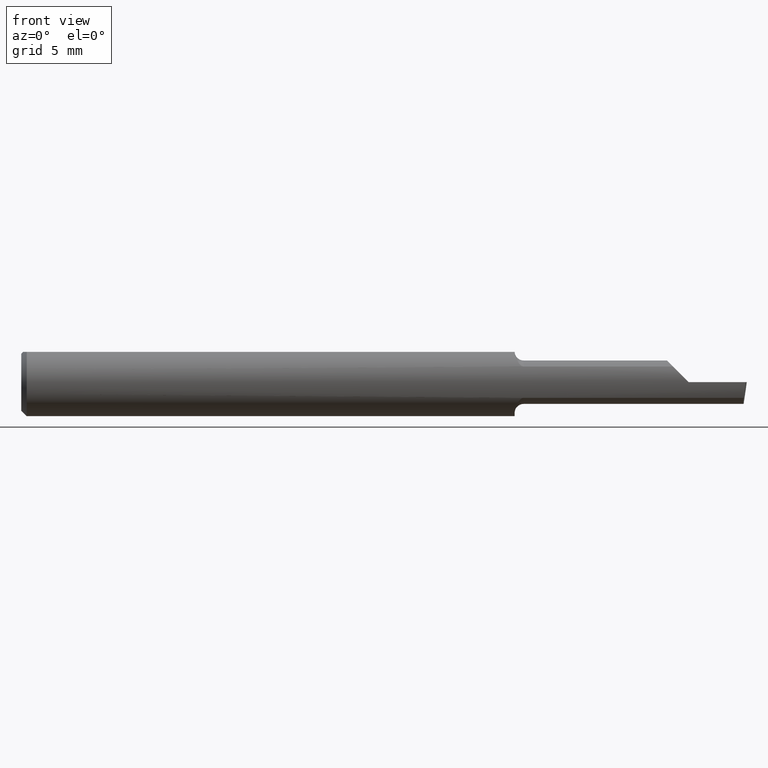
[diagram: clean part render]
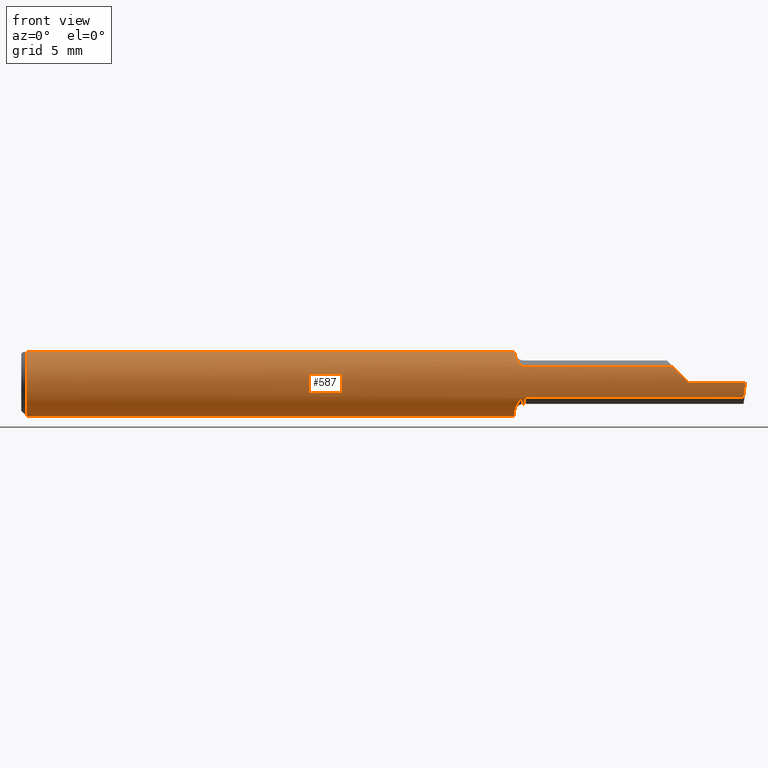
[diagram: same view with one face highlighted and labeled with its STEP entity id]
A machine part, front view. The second image highlights one B-rep face of the part: STEP entity #587.
In plain terms, the highlighted cylindrical surface (edge-blend (fillet) strip) has radius 2.3774 mm, axis along (-1, -0, -0).
Its self-contained STEP definition (entity closure, byte-faithful):
#4 = ORIENTED_EDGE ( 'NONE', *, *, #201, .T. ) ;
#20 = ORIENTED_EDGE ( 'NONE', *, *, #623, .F. ) ;
#26 = CARTESIAN_POINT ( 'NONE',  ( 1.369237437666585455, -0.07513599091569019006, -0.05602756047418826907 ) ) ;
#30 = CARTESIAN_POINT ( 'NONE',  ( 1.360020127471513129, -0.04150000000000002298, -0.08389702020930182857 ) ) ;
#34 = CARTESIAN_POINT ( 'NONE',  ( 1.384999999999999787, -0.08307469879518060429, 0.04312255117789303566 ) ) ;
#40 = EDGE_CURVE ( 'NONE', #176, #450, #514, .T. ) ;
#44 = CARTESIAN_POINT ( 'NONE',  ( 1.996386342823452065, -0.09360000000000009979, -6.634435288474567089E-17 ) ) ;
#47 = CARTESIAN_POINT ( 'NONE',  ( 0.01499999999999999598, 0.0000000000000000000, -0.09360000000000001652 ) ) ;
#53 = DIRECTION ( 'NONE',  ( -1.000000000000000000, -0.0000000000000000000, -0.0000000000000000000 ) ) ;
#57 = CARTESIAN_POINT ( 'NONE',  ( 1.840000000000000080, -0.09360000000000005815, 1.959434878635762025E-17 ) ) ;
#59 = CARTESIAN_POINT ( 'NONE',  ( 1.810264301876177928, -0.09002356847881788637, 0.02973569812382168345 ) ) ;
#62 = CARTESIAN_POINT ( 'NONE',  ( 1.360020127471513129, -0.04150000000000002298, -0.08389702020930182857 ) ) ;
#63 = CARTESIAN_POINT ( 'NONE',  ( 0.01499999999999999944, -0.04209513035969835587, 0.08360000000000000764 ) ) ;
#65 = CARTESIAN_POINT ( 'NONE',  ( 1.996386342823452065, -0.09360000000000009979, -6.634435288474567089E-17 ) ) ;
#71 = CARTESIAN_POINT ( 'NONE',  ( 1.619999999999999885, -0.08307469879518077083, 0.04312255117789289688 ) ) ;
#74 = CARTESIAN_POINT ( 'NONE',  ( 1.373672693420809443, -0.07917899622880057720, -0.04997532113045943802 ) ) ;
#77 = CARTESIAN_POINT ( 'NONE',  ( 1.369277238843510602, -0.07518688180261752507, 0.05595855205958088358 ) ) ;
#81 = CARTESIAN_POINT ( 'NONE',  ( 1.360033712670299932, -0.04209513035969834893, 0.08360000000000000764 ) ) ;
#82 = ORIENTED_EDGE ( 'NONE', *, *, #573, .F. ) ;
#85 = B_SPLINE_CURVE_WITH_KNOTS ( 'NONE', 3,
 ( #81, #631, #182, #432, #123, #328, #77, #484, #384, #430, #283, #237 ),
 .UNSPECIFIED., .F., .F.,
 ( 4, 2, 2, 2, 2, 4 ),
 ( 4.385794166506856804E-07, 0.0004249653867803443734, 0.0008494921941440383879, 0.001274019001507732457, 0.001486282405189579166, 0.001698545808871426092 ),
 .UNSPECIFIED. ) ;
#87 = DIRECTION ( 'NONE',  ( 0.0000000000000000000, 0.0000000000000000000, 1.000000000000000000 ) ) ;
#89 = CARTESIAN_POINT ( 'NONE',  ( 1.992827658777091893, -0.09002356847881787250, -0.02973569812382169039 ) ) ;
#91 = CARTESIAN_POINT ( 'NONE',  ( 1.796877448822106649, -0.08307469879518074307, 0.04312255117789294545 ) ) ;
#93 = DIRECTION ( 'NONE',  ( 1.000000000000000000, 0.0000000000000000000, 0.0000000000000000000 ) ) ;
#100 = ORIENTED_EDGE ( 'NONE', *, *, #503, .F. ) ;
#113 = AXIS2_PLACEMENT_3D ( 'NONE', #200, #444, #650 ) ;
#117 = LINE ( 'NONE', #649, #647 ) ;
#121 = AXIS2_PLACEMENT_3D ( 'NONE', #381, #181, #376 ) ;
#123 = CARTESIAN_POINT ( 'NONE',  ( 1.363721006865827645, -0.06478644025684784924, 0.06776242552123268315 ) ) ;
#124 = VERTEX_POINT ( 'NONE', #62 ) ;
#126 = CARTESIAN_POINT ( 'NONE',  ( 1.367076397983110869, -0.07187891021191493424, -0.06019546731975673054 ) ) ;
#129 = CARTESIAN_POINT ( 'NONE',  ( 1.619999999999999885, -0.08307469879518077083, -0.04312255117789289688 ) ) ;
#131 = B_SPLINE_CURVE_WITH_KNOTS ( 'NONE', 3,
 ( #527, #227, #578, #582 ),
 .UNSPECIFIED., .F., .F.,
 ( 4, 4 ),
 ( 0.001735506710063797848, 0.001793010945052102593 ),
 .UNSPECIFIED. ) ;
#132 = CARTESIAN_POINT ( 'NONE',  ( 0.01499999999999999598, 0.04209513035969837669, 0.08360000000000000764 ) ) ;
#134 = VERTEX_POINT ( 'NONE', #571 ) ;
#139 = CARTESIAN_POINT ( 'NONE',  ( 1.994533757673610408, -0.09360000000000001652, -0.01508292493422509241 ) ) ;
#151 = VERTEX_POINT ( 'NONE', #65 ) ;
#153 = FACE_OUTER_BOUND ( 'NONE', #229, .T. ) ;
#161 = CIRCLE ( 'NONE', #424, 0.09360000000000001652 ) ;
#164 = VECTOR ( 'NONE', #53, 39.37007874015748143 ) ;
#165 = EDGE_CURVE ( 'NONE', #574, #276, #496, .T. ) ;
#166 = CARTESIAN_POINT ( 'NONE',  ( 1.360033712670299932, -0.04209513035969834893, 0.08360000000000000764 ) ) ;
#170 = ORIENTED_EDGE ( 'NONE', *, *, #414, .T. ) ;
#176 = VERTEX_POINT ( 'NONE', #166 ) ;
#181 = DIRECTION ( 'NONE',  ( -1.000000000000000000, -0.0000000000000000000, -0.0000000000000000000 ) ) ;
#182 = CARTESIAN_POINT ( 'NONE',  ( 1.360661035553191178, -0.05185656404701179112, 0.07811662714583192391 ) ) ;
#186 = CARTESIAN_POINT ( 'NONE',  ( 1.360121283746727805, -0.04659318327468397331, -0.08137765652544183548 ) ) ;
#187 = CARTESIAN_POINT ( 'NONE',  ( 1.840000000000000080, -0.09360000000000005815, 1.959434878635762025E-17 ) ) ;
#190 = VERTEX_POINT ( 'NONE', #429 ) ;
#193 = LINE ( 'NONE', #592, #610 ) ;
#200 = CARTESIAN_POINT ( 'NONE',  ( 0.0000000000000000000, 0.0000000000000000000, 0.0000000000000000000 ) ) ;
#201 = EDGE_CURVE ( 'NONE', #151, #547, #193, .T. ) ;
#213 = CARTESIAN_POINT ( 'NONE',  ( 1.796877448822106649, -0.08307469879518074307, 0.04312255117789294545 ) ) ;
#227 = CARTESIAN_POINT ( 'NONE',  ( 1.360006719116742424, -0.04082489400077272956, -0.08423096411932438909 ) ) ;
#229 = EDGE_LOOP ( 'NONE', ( #82, #385, #4, #170, #336, #259, #531, #20, #485, #439, #100, #425, #558 ) ) ;
#230 = B_SPLINE_CURVE_WITH_KNOTS ( 'NONE', 3,
 ( #533, #483, #234, #480, #74, #26, #126, #585, #577, #626, #186, #30 ),
 .UNSPECIFIED., .F., .F.,
 ( 4, 2, 2, 2, 2, 4 ),
 ( 1.963546462201886234E-07, 0.0002171101490734169543, 0.0004340239435006137524, 0.0008678515323550084872, 0.001301679121209403005, 0.001735506710063797848 ),
 .UNSPECIFIED. ) ;
#234 = CARTESIAN_POINT ( 'NONE',  ( 1.379498465877713853, -0.08233174416856396671, -0.04456779206614371047 ) ) ;
#237 = CARTESIAN_POINT ( 'NONE',  ( 1.384999999999999787, -0.08307469879518060429, 0.04312255117789303566 ) ) ;
#259 = ORIENTED_EDGE ( 'NONE', *, *, #537, .F. ) ;
#276 = VERTEX_POINT ( 'NONE', #47 ) ;
#283 = CARTESIAN_POINT ( 'NONE',  ( 1.382123707331537332, -0.08307469879541819202, 0.04312255117743568622 ) ) ;
#306 = VERTEX_POINT ( 'NONE', #91 ) ;
#308 = CARTESIAN_POINT ( 'NONE',  ( 1.824917075065774830, -0.09360000000000001652, 0.01508292493422502302 ) ) ;
#313 = CYLINDRICAL_SURFACE ( 'NONE', #113, 0.09360000000000001652 ) ;
#323 = EDGE_CURVE ( 'NONE', #574, #380, #117, .T. ) ;
#328 = CARTESIAN_POINT ( 'NONE',  ( 1.367169981117899669, -0.07201923175886888739, 0.06001882546782343064 ) ) ;
#336 = ORIENTED_EDGE ( 'NONE', *, *, #458, .F. ) ;
#358 = CARTESIAN_POINT ( 'NONE',  ( 1.359999999999999654, 0.04209513035969836975, 0.08360000000000000764 ) ) ;
#371 = DIRECTION ( 'NONE',  ( 1.000000000000000000, 0.0000000000000000000, 0.0000000000000000000 ) ) ;
#376 = DIRECTION ( 'NONE',  ( 0.0000000000000000000, 0.0000000000000000000, 1.000000000000000000 ) ) ;
#380 = VERTEX_POINT ( 'NONE', #358 ) ;
#381 = CARTESIAN_POINT ( 'NONE',  ( 0.01499999999999999598, 0.0000000000000000000, 0.0000000000000000000 ) ) ;
#384 = CARTESIAN_POINT ( 'NONE',  ( 1.375413575230741703, -0.08042664989321215985, 0.04791921015141205331 ) ) ;
#385 = ORIENTED_EDGE ( 'NONE', *, *, #604, .T. ) ;
#391 = DIRECTION ( 'NONE',  ( -1.000000000000000000, -0.0000000000000000000, -0.0000000000000000000 ) ) ;
#402 = VERTEX_POINT ( 'NONE', #456 ) ;
#407 = DIRECTION ( 'NONE',  ( 1.000000000000000000, 0.0000000000000000000, 0.0000000000000000000 ) ) ;
#411 = DIRECTION ( 'NONE',  ( 0.0000000000000000000, 0.0000000000000000000, -1.000000000000000000 ) ) ;
#414 = EDGE_CURVE ( 'NONE', #547, #306, #646, .T. ) ;
#416 = AXIS2_PLACEMENT_3D ( 'NONE', #584, #407, #411 ) ;
#423 = LINE ( 'NONE', #129, #477 ) ;
#424 = AXIS2_PLACEMENT_3D ( 'NONE', #633, #391, #87 ) ;
#425 = ORIENTED_EDGE ( 'NONE', *, *, #541, .F. ) ;
#429 = CARTESIAN_POINT ( 'NONE',  ( 1.359999999999999654, -0.03946024096385552377, -0.08487549341873930342 ) ) ;
#430 = CARTESIAN_POINT ( 'NONE',  ( 1.379521451227007312, -0.08233651528522394070, 0.04455777109850301426 ) ) ;
#432 = CARTESIAN_POINT ( 'NONE',  ( 1.362429122971264839, -0.06066239981255454328, 0.07149394324265899436 ) ) ;
#439 = ORIENTED_EDGE ( 'NONE', *, *, #323, .T. ) ;
#444 = DIRECTION ( 'NONE',  ( -1.000000000000000000, -0.0000000000000000000, -0.0000000000000000000 ) ) ;
#447 = CARTESIAN_POINT ( 'NONE',  ( 1.991365359011875169, -0.08307469879518077083, -0.04312255117789289688 ) ) ;
#450 = VERTEX_POINT ( 'NONE', #63 ) ;
#456 = CARTESIAN_POINT ( 'NONE',  ( 1.991365359011875169, -0.08307469879518077083, -0.04312255117789289688 ) ) ;
#458 = EDGE_CURVE ( 'NONE', #510, #306, #544, .T. ) ;
#477 = VECTOR ( 'NONE', #599, 39.37007874015748143 ) ;
#480 = CARTESIAN_POINT ( 'NONE',  ( 1.375354605856553336, -0.08039319987159068703, -0.04797642756495484884 ) ) ;
#483 = CARTESIAN_POINT ( 'NONE',  ( 1.382100790213033559, -0.08307469879518092348, -0.04312255117789264014 ) ) ;
#484 = CARTESIAN_POINT ( 'NONE',  ( 1.373723886093657587, -0.07921817987507918934, 0.04991299092652128760 ) ) ;
#485 = ORIENTED_EDGE ( 'NONE', *, *, #165, .F. ) ;
#487 = VECTOR ( 'NONE', #371, 39.37007874015748143 ) ;
#495 = CIRCLE ( 'NONE', #416, 0.09360000000000001652 ) ;
#496 = CIRCLE ( 'NONE', #121, 0.09360000000000001652 ) ;
#503 = EDGE_CURVE ( 'NONE', #190, #380, #495, .T. ) ;
#510 = VERTEX_POINT ( 'NONE', #34 ) ;
#514 = LINE ( 'NONE', #660, #164 ) ;
#522 = EDGE_CURVE ( 'NONE', #134, #124, #230, .T. ) ;
#525 =( BOUNDED_CURVE ( )  B_SPLINE_CURVE ( 3, ( #447, #89, #139, #44 ),
 .UNSPECIFIED., .F., .F. ) 
 B_SPLINE_CURVE_WITH_KNOTS ( ( 4, 4 ),
 ( 0.8819507499627845526, 1.360746882514781042 ),
 .UNSPECIFIED. ) 
 CURVE ( )  GEOMETRIC_REPRESENTATION_ITEM ( )  RATIONAL_B_SPLINE_CURVE ( ( 1.000000000000000000, 0.9809872534005956712, 0.9809872534005956712, 1.000000000000000000 ) ) 
 REPRESENTATION_ITEM ( '' )  );
#527 = CARTESIAN_POINT ( 'NONE',  ( 1.360020127471513129, -0.04150000000000002298, -0.08389702020930182857 ) ) ;
#531 = ORIENTED_EDGE ( 'NONE', *, *, #40, .T. ) ;
#533 = CARTESIAN_POINT ( 'NONE',  ( 1.384999999999999787, -0.08307469879518095124, -0.04312255117789267483 ) ) ;
#537 = EDGE_CURVE ( 'NONE', #176, #510, #85, .T. ) ;
#539 = DIRECTION ( 'NONE',  ( -1.000000000000000000, -0.0000000000000000000, -0.0000000000000000000 ) ) ;
#541 = EDGE_CURVE ( 'NONE', #124, #190, #131, .T. ) ;
#544 = LINE ( 'NONE', #71, #487 ) ;
#547 = VERTEX_POINT ( 'NONE', #187 ) ;
#558 = ORIENTED_EDGE ( 'NONE', *, *, #522, .F. ) ;
#571 = CARTESIAN_POINT ( 'NONE',  ( 1.384999999999999787, -0.08307469879518095124, -0.04312255117789267483 ) ) ;
#573 = EDGE_CURVE ( 'NONE', #402, #134, #423, .T. ) ;
#574 = VERTEX_POINT ( 'NONE', #132 ) ;
#577 = CARTESIAN_POINT ( 'NONE',  ( 1.362355770679724021, -0.06040702343486045733, -0.07171535245186137775 ) ) ;
#578 = CARTESIAN_POINT ( 'NONE',  ( 1.359999999999999654, -0.04014498638740779390, -0.08455714216888013390 ) ) ;
#582 = CARTESIAN_POINT ( 'NONE',  ( 1.359999999999999654, -0.03946024096385552377, -0.08487549341873930342 ) ) ;
#584 = CARTESIAN_POINT ( 'NONE',  ( 1.359999999999999654, 0.0000000000000000000, 0.0000000000000000000 ) ) ;
#585 = CARTESIAN_POINT ( 'NONE',  ( 1.363605992736884653, -0.06448586599545338971, -0.06805619079784636094 ) ) ;
#587 = ADVANCED_FACE ( 'NONE', ( #153 ), #313, .T. ) ;
#592 = CARTESIAN_POINT ( 'NONE',  ( 5.659797890829555466E-31, -0.09359999999999998876, 1.030335658007946046E-15 ) ) ;
#599 = DIRECTION ( 'NONE',  ( -1.000000000000000000, -0.0000000000000000000, -0.0000000000000000000 ) ) ;
#604 = EDGE_CURVE ( 'NONE', #402, #151, #525, .T. ) ;
#610 = VECTOR ( 'NONE', #539, 39.37007874015748143 ) ;
#623 = EDGE_CURVE ( 'NONE', #276, #450, #161, .T. ) ;
#626 = CARTESIAN_POINT ( 'NONE',  ( 1.360604804002112367, -0.05145819953596717650, -0.07838465384289874938 ) ) ;
#631 = CARTESIAN_POINT ( 'NONE',  ( 1.360163936266268525, -0.04714148439307229432, 0.08105900800387487448 ) ) ;
#633 = CARTESIAN_POINT ( 'NONE',  ( 0.01499999999999999598, 0.0000000000000000000, 0.0000000000000000000 ) ) ;
#646 =( BOUNDED_CURVE ( )  B_SPLINE_CURVE ( 3, ( #57, #308, #59, #213 ),
 .UNSPECIFIED., .F., .F. ) 
 B_SPLINE_CURVE_WITH_KNOTS ( ( 4, 4 ),
 ( 4.712388980384689674, 5.191185112936687496 ),
 .UNSPECIFIED. ) 
 CURVE ( )  GEOMETRIC_REPRESENTATION_ITEM ( )  RATIONAL_B_SPLINE_CURVE ( ( 1.000000000000000000, 0.9809872534005956712, 0.9809872534005956712, 1.000000000000000000 ) ) 
 REPRESENTATION_ITEM ( '' )  );
#647 = VECTOR ( 'NONE', #93, 39.37007874015748143 ) ;
#649 = CARTESIAN_POINT ( 'NONE',  ( 0.0000000000000000000, 0.04209513035969837669, 0.08360000000000000764 ) ) ;
#650 = DIRECTION ( 'NONE',  ( 0.0000000000000000000, 0.0000000000000000000, 1.000000000000000000 ) ) ;
#660 = CARTESIAN_POINT ( 'NONE',  ( 0.0000000000000000000, -0.04209513035969835587, 0.08360000000000000764 ) ) ;